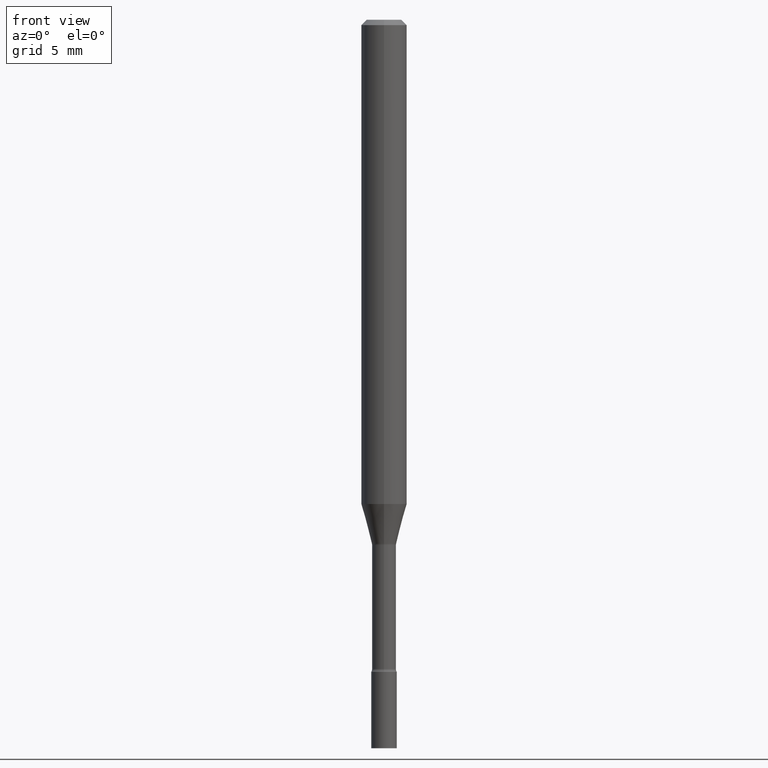
[diagram: clean part render]
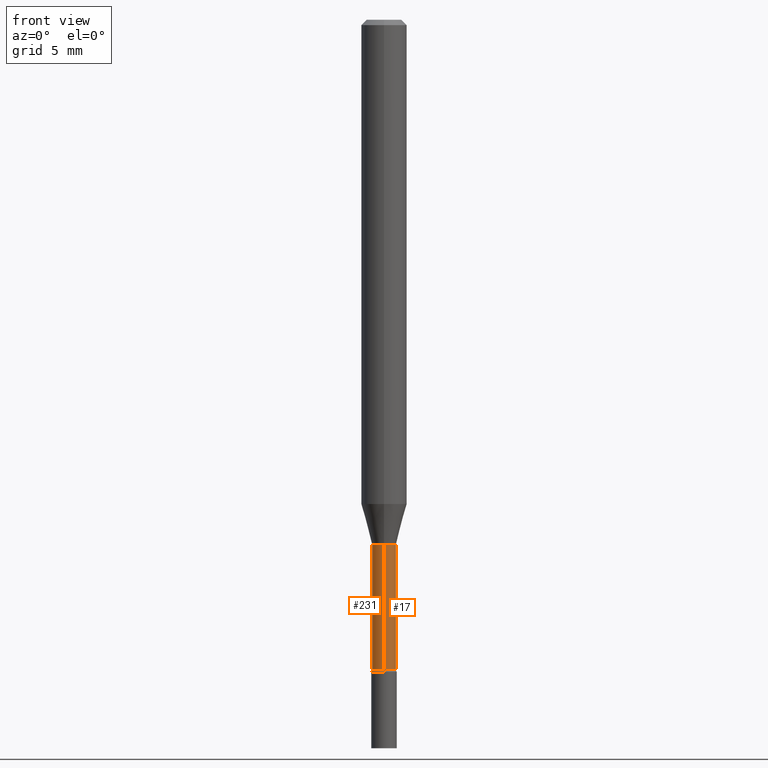
[diagram: same view with one multi-face feature highlighted, each face labeled with its STEP entity id]
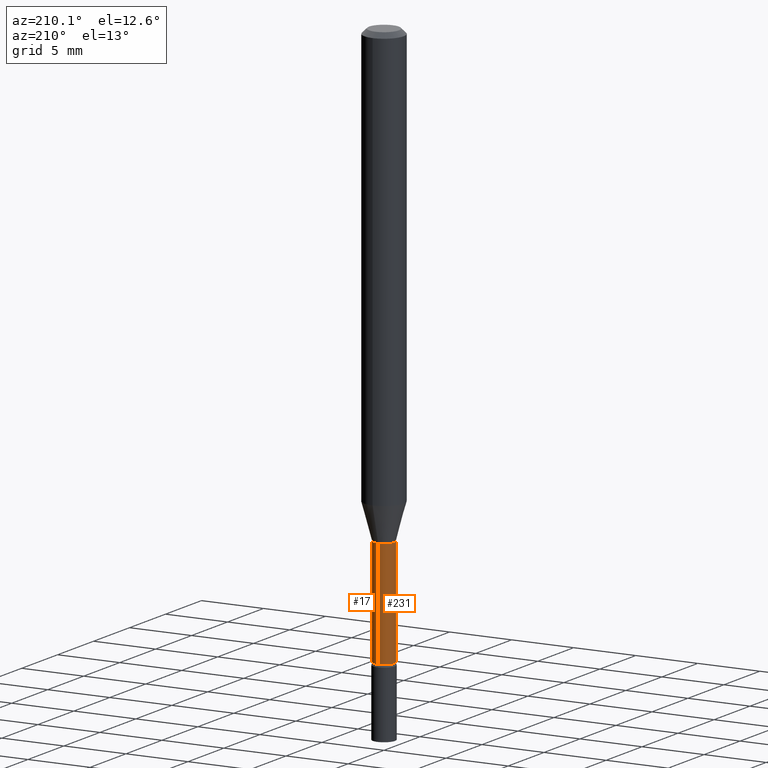
[diagram: same view with one multi-face feature highlighted, each face labeled with its STEP entity id]
A machine part, front view. The highlighted faces form ONE feature: a constant-radius fillet chain: 2 tangent blend faces with common blend radius 0.8357 mm. The faces share edges in the B-rep.
A second angle (auxiliary view) of the same feature is appended — it is thin or edge-on in the first view.
Their STEP definitions:
[1] entity #231 (Cylinder):
#3 = EDGE_CURVE ( 'NONE', #177, #472, #390, .T. ) ;
#24 = CARTESIAN_POINT ( 'NONE',  ( 2.337685600650728039E-16, 0.03289999999999997787, -1.148687529449777837E-16 ) ) ;
#51 = ORIENTED_EDGE ( 'NONE', *, *, #88, .F. ) ;
#63 = CARTESIAN_POINT ( 'NONE',  ( 2.412292587905977528E-16, 0.03289999999999373287, -1.782345589506695971 ) ) ;
#73 = DIRECTION ( 'NONE',  ( -2.445489672359267828E-29, 3.491451457294160649E-15, 1.000000000000000000 ) ) ;
#88 = EDGE_CURVE ( 'NONE', #365, #177, #461, .T. ) ;
#90 = VECTOR ( 'NONE', #73, 39.37007874015748143 ) ;
#102 = VECTOR ( 'NONE', #107, 39.37007874015748143 ) ;
#107 = DIRECTION ( 'NONE',  ( -2.445489672359267828E-29, 3.491451457294160649E-15, 1.000000000000000000 ) ) ;
#111 = CYLINDRICAL_SURFACE ( 'NONE', #327, 0.03289999999999997787 ) ;
#119 = ORIENTED_EDGE ( 'NONE', *, *, #266, .T. ) ;
#131 = DIRECTION ( 'NONE',  ( -6.982962677686265922E-15, -1.000000000000000000, 0.000000000000000000 ) ) ;
#132 = CARTESIAN_POINT ( 'NONE',  ( 3.526334450545200357E-29, -5.034584973071959801E-15, -1.441974787463810914 ) ) ;
#141 = FACE_OUTER_BOUND ( 'NONE', #321, .T. ) ;
#149 = CARTESIAN_POINT ( 'NONE',  ( -2.297394720958429005E-16, -0.03290000000000503633, -1.441974787463810914 ) ) ;
#165 = AXIS2_PLACEMENT_3D ( 'NONE', #132, #212, #417 ) ;
#166 = CIRCLE ( 'NONE', #232, 0.03289999999999995706 ) ;
#172 = ORIENTED_EDGE ( 'NONE', *, *, #3, .F. ) ;
#173 = CARTESIAN_POINT ( 'NONE',  ( 0.000000000000000000, 0.000000000000000000, 0.000000000000000000 ) ) ;
#176 = DIRECTION ( 'NONE',  ( -2.445489672359268108E-29, 3.491451457294160255E-15, 1.000000000000000000 ) ) ;
#177 = VERTEX_POINT ( 'NONE', #242 ) ;
#209 = DIRECTION ( 'NONE',  ( -2.445489672359268108E-29, 3.491451457294160255E-15, 1.000000000000000000 ) ) ;
#212 = DIRECTION ( 'NONE',  ( -2.445489672359268108E-29, 3.491451457294160255E-15, 1.000000000000000000 ) ) ;
#224 = EDGE_CURVE ( 'NONE', #376, #472, #462, .T. ) ;
#231 = ADVANCED_FACE ( 'NONE', ( #141 ), #111, .T. ) ;
#232 = AXIS2_PLACEMENT_3D ( 'NONE', #492, #176, #131 ) ;
#242 = CARTESIAN_POINT ( 'NONE',  ( 2.337685600651166350E-16, 0.03289999999999496799, -1.441974787463810914 ) ) ;
#266 = EDGE_CURVE ( 'NONE', #365, #376, #166, .T. ) ;
#321 = EDGE_LOOP ( 'NONE', ( #51, #119, #489, #172 ) ) ;
#327 = AXIS2_PLACEMENT_3D ( 'NONE', #173, #209, #340 ) ;
#340 = DIRECTION ( 'NONE',  ( -6.982962677686265922E-15, -1.000000000000000000, 3.491451457294159860E-15 ) ) ;
#365 = VERTEX_POINT ( 'NONE', #63 ) ;
#376 = VERTEX_POINT ( 'NONE', #425 ) ;
#390 = CIRCLE ( 'NONE', #165, 0.03289999999999999869 ) ;
#417 = DIRECTION ( 'NONE',  ( -6.982962677686266711E-15, -1.000000000000000000, 0.000000000000000000 ) ) ;
#420 = CARTESIAN_POINT ( 'NONE',  ( -2.297394720958780048E-16, -0.03289999999999997787, 1.148687529449777837E-16 ) ) ;
#425 = CARTESIAN_POINT ( 'NONE',  ( -2.297394720958342723E-16, -0.03290000000000618124, -1.782345589506695971 ) ) ;
#461 = LINE ( 'NONE', #24, #90 ) ;
#462 = LINE ( 'NONE', #420, #102 ) ;
#472 = VERTEX_POINT ( 'NONE', #149 ) ;
#489 = ORIENTED_EDGE ( 'NONE', *, *, #224, .T. ) ;
#492 = CARTESIAN_POINT ( 'NONE',  ( 4.358707731713716870E-29, -6.222973105884972225E-15, -1.782345589506695971 ) ) ;
[2] entity #17 (Cylinder):
#2 = DIRECTION ( 'NONE',  ( -2.445489672359268108E-29, 3.491451457294160255E-15, 1.000000000000000000 ) ) ;
#17 = ADVANCED_FACE ( 'NONE', ( #399 ), #87, .T. ) ;
#24 = CARTESIAN_POINT ( 'NONE',  ( 2.337685600650728039E-16, 0.03289999999999997787, -1.148687529449777837E-16 ) ) ;
#63 = CARTESIAN_POINT ( 'NONE',  ( 2.412292587905977528E-16, 0.03289999999999373287, -1.782345589506695971 ) ) ;
#73 = DIRECTION ( 'NONE',  ( -2.445489672359267828E-29, 3.491451457294160649E-15, 1.000000000000000000 ) ) ;
#87 = CYLINDRICAL_SURFACE ( 'NONE', #120, 0.03289999999999997787 ) ;
#88 = EDGE_CURVE ( 'NONE', #365, #177, #461, .T. ) ;
#90 = VECTOR ( 'NONE', #73, 39.37007874015748143 ) ;
#102 = VECTOR ( 'NONE', #107, 39.37007874015748143 ) ;
#107 = DIRECTION ( 'NONE',  ( -2.445489672359267828E-29, 3.491451457294160649E-15, 1.000000000000000000 ) ) ;
#120 = AXIS2_PLACEMENT_3D ( 'NONE', #516, #2, #229 ) ;
#134 = DIRECTION ( 'NONE',  ( -2.445489672359268108E-29, 3.491451457294160255E-15, 1.000000000000000000 ) ) ;
#144 = CARTESIAN_POINT ( 'NONE',  ( 4.358707731713716870E-29, -6.222973105884972225E-15, -1.782345589506695971 ) ) ;
#149 = CARTESIAN_POINT ( 'NONE',  ( -2.297394720958429005E-16, -0.03290000000000503633, -1.441974787463810914 ) ) ;
#177 = VERTEX_POINT ( 'NONE', #242 ) ;
#204 = ORIENTED_EDGE ( 'NONE', *, *, #307, .F. ) ;
#208 = ORIENTED_EDGE ( 'NONE', *, *, #88, .T. ) ;
#214 = EDGE_LOOP ( 'NONE', ( #299, #208, #204, #504 ) ) ;
#224 = EDGE_CURVE ( 'NONE', #376, #472, #462, .T. ) ;
#229 = DIRECTION ( 'NONE',  ( -6.982962677686265922E-15, -1.000000000000000000, 3.491451457294159860E-15 ) ) ;
#230 = CIRCLE ( 'NONE', #310, 0.03289999999999995706 ) ;
#242 = CARTESIAN_POINT ( 'NONE',  ( 2.337685600651166350E-16, 0.03289999999999496799, -1.441974787463810914 ) ) ;
#287 = CARTESIAN_POINT ( 'NONE',  ( 3.526334450545200357E-29, -5.034584973071959801E-15, -1.441974787463810914 ) ) ;
#293 = DIRECTION ( 'NONE',  ( -6.982962677686266711E-15, -1.000000000000000000, 0.000000000000000000 ) ) ;
#299 = ORIENTED_EDGE ( 'NONE', *, *, #400, .T. ) ;
#307 = EDGE_CURVE ( 'NONE', #472, #177, #499, .T. ) ;
#310 = AXIS2_PLACEMENT_3D ( 'NONE', #144, #388, #464 ) ;
#365 = VERTEX_POINT ( 'NONE', #63 ) ;
#376 = VERTEX_POINT ( 'NONE', #425 ) ;
#388 = DIRECTION ( 'NONE',  ( -2.445489672359268108E-29, 3.491451457294160255E-15, 1.000000000000000000 ) ) ;
#399 = FACE_OUTER_BOUND ( 'NONE', #214, .T. ) ;
#400 = EDGE_CURVE ( 'NONE', #376, #365, #230, .T. ) ;
#404 = AXIS2_PLACEMENT_3D ( 'NONE', #287, #134, #293 ) ;
#420 = CARTESIAN_POINT ( 'NONE',  ( -2.297394720958780048E-16, -0.03289999999999997787, 1.148687529449777837E-16 ) ) ;
#425 = CARTESIAN_POINT ( 'NONE',  ( -2.297394720958342723E-16, -0.03290000000000618124, -1.782345589506695971 ) ) ;
#461 = LINE ( 'NONE', #24, #90 ) ;
#462 = LINE ( 'NONE', #420, #102 ) ;
#464 = DIRECTION ( 'NONE',  ( -6.982962677686265922E-15, -1.000000000000000000, 0.000000000000000000 ) ) ;
#472 = VERTEX_POINT ( 'NONE', #149 ) ;
#499 = CIRCLE ( 'NONE', #404, 0.03289999999999999869 ) ;
#504 = ORIENTED_EDGE ( 'NONE', *, *, #224, .F. ) ;
#516 = CARTESIAN_POINT ( 'NONE',  ( 0.000000000000000000, 0.000000000000000000, 0.000000000000000000 ) ) ;